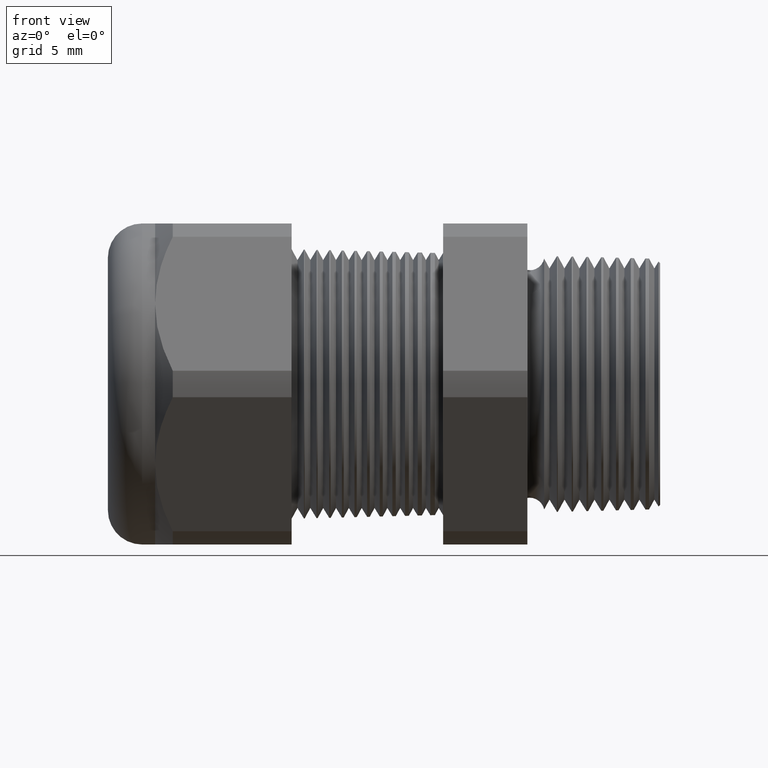
[diagram: clean part render]
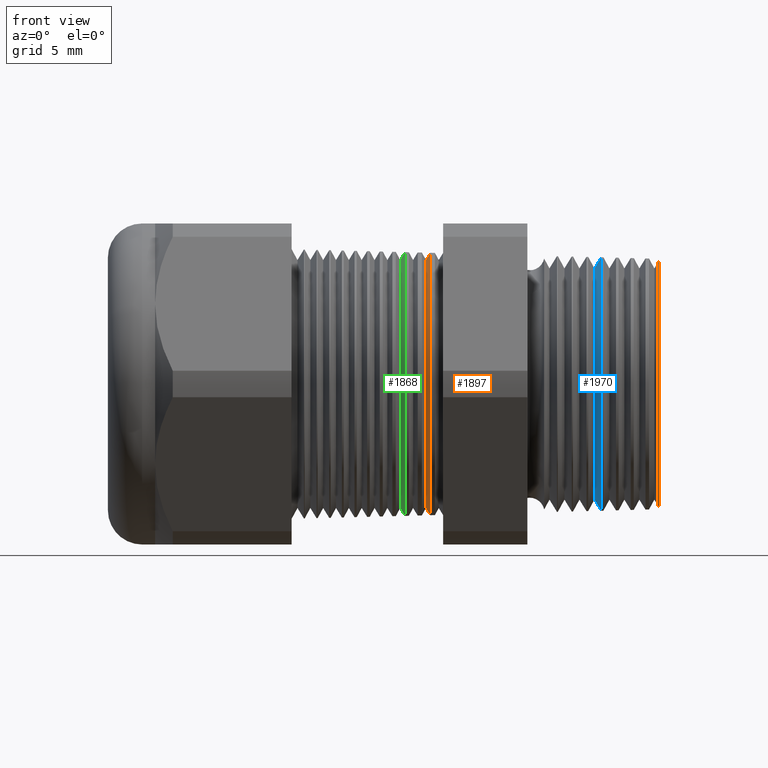
[diagram: same view with three faces highlighted in distinct colors, each labeled with its STEP entity id]
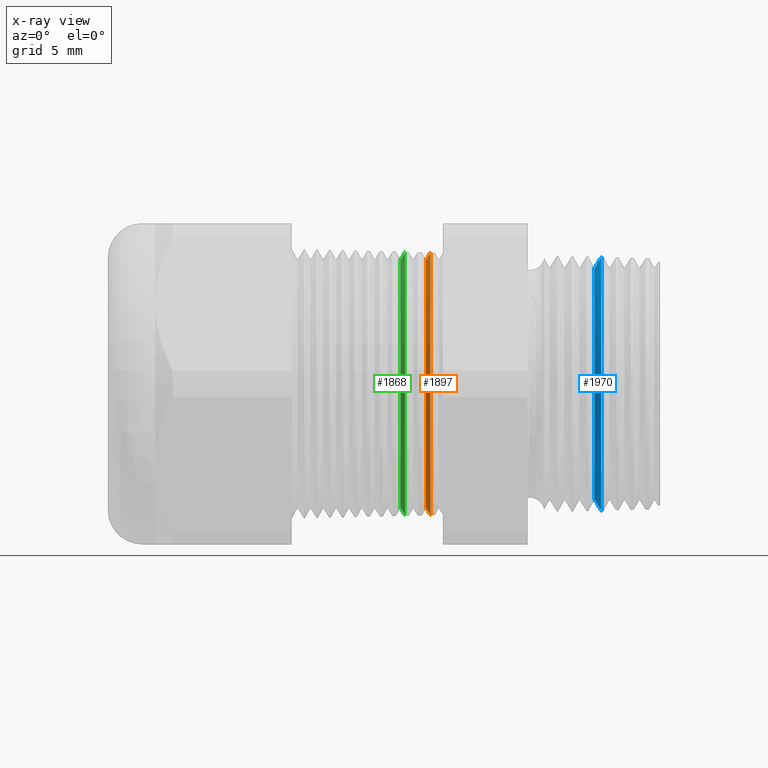
[diagram: x-ray of the same camera — body ghosted, the three highlighted faces saturated]
A machine part, front view with three faces highlighted in distinct colors.
The next image is the same camera in x-ray (body ghosted, the three faces saturated) — at least one of them is partly hidden behind the body in this view.
Their STEP definitions:

[orange] entity #1897 — the highlighted conical surface has half-angle 58.5 deg.
#651 = EDGE_CURVE ( 'NONE', #816, #813, #2442, .T. ) ;
#751 = VERTEX_POINT ( 'NONE', #2628 ) ;
#813 = VERTEX_POINT ( 'NONE', #2711 ) ;
#814 = EDGE_CURVE ( 'NONE', #751, #816, #2710, .T. ) ;
#816 = VERTEX_POINT ( 'NONE', #2701 ) ;
#819 = EDGE_CURVE ( 'NONE', #821, #813, #2757, .T. ) ;
#821 = VERTEX_POINT ( 'NONE', #2753 ) ;
#1844 = EDGE_CURVE ( 'NONE', #821, #751, #4614, .T. ) ;
#1897 = ADVANCED_FACE ( 'NONE', ( #4670 ), #4669, .T. ) ;
#1898 = EDGE_LOOP ( 'NONE', ( #1899, #1900, #1901, #1902 ) ) ;
#1899 = ORIENTED_EDGE ( 'NONE', *, *, #819, .F. ) ;
#1900 = ORIENTED_EDGE ( 'NONE', *, *, #1844, .T. ) ;
#1901 = ORIENTED_EDGE ( 'NONE', *, *, #814, .T. ) ;
#1902 = ORIENTED_EDGE ( 'NONE', *, *, #651, .T. ) ;
#2438 = DIRECTION ( 'NONE',  ( 0.0000000000000000000, 0.0000000000000000000, -1.000000000000000000 ) ) ;
#2439 = DIRECTION ( 'NONE',  ( -1.000000000000000000, 0.0000000000000000000, 0.0000000000000000000 ) ) ;
#2440 = CARTESIAN_POINT ( 'NONE',  ( -0.5367465169992680100, 0.0000000000000000000, 0.0000000000000000000 ) ) ;
#2441 = AXIS2_PLACEMENT_3D ( 'NONE', #2440, #2439, #2438 ) ;
#2442 = CIRCLE ( 'NONE', #2441, 0.3065126289277092500 ) ;
#2628 = CARTESIAN_POINT ( 'NONE',  ( -0.5470917547981792900, 3.653498935748999400E-017, -0.2896307351718082600 ) ) ;
#2701 = CARTESIAN_POINT ( 'NONE',  ( -0.5367465169992680100, 3.753697099145595900E-017, -0.3065126289277092500 ) ) ;
#2707 = DIRECTION ( 'NONE',  ( 0.5224985647159348100, 0.0000000000000000000, -0.8526401643541007300 ) ) ;
#2708 = VECTOR ( 'NONE', #2707, 39.37007874015748900 ) ;
#2709 = CARTESIAN_POINT ( 'NONE',  ( -0.5470917547981792900, 0.0000000000000000000, -0.2896307351718082600 ) ) ;
#2710 = LINE ( 'NONE', #2709, #2708 ) ;
#2711 = CARTESIAN_POINT ( 'NONE',  ( -0.5367465169992680100, 0.0000000000000000000, 0.3065126289277092500 ) ) ;
#2753 = CARTESIAN_POINT ( 'NONE',  ( -0.5470917547981792900, 0.0000000000000000000, 0.2896307351718082600 ) ) ;
#2754 = DIRECTION ( 'NONE',  ( 0.5224985647159348100, 1.044183048100722500E-016, 0.8526401643541007300 ) ) ;
#2755 = VECTOR ( 'NONE', #2754, 39.37007874015748900 ) ;
#2756 = CARTESIAN_POINT ( 'NONE',  ( -0.5470917547981792900, 3.546953527628497700E-017, 0.2896307351718082600 ) ) ;
#2757 = LINE ( 'NONE', #2756, #2755 ) ;
#4606 = DIRECTION ( 'NONE',  ( 0.0000000000000000000, 0.0000000000000000000, -1.000000000000000000 ) ) ;
#4607 = DIRECTION ( 'NONE',  ( 1.000000000000000000, 0.0000000000000000000, 0.0000000000000000000 ) ) ;
#4608 = CARTESIAN_POINT ( 'NONE',  ( -0.5470917547981792900, 0.0000000000000000000, 0.0000000000000000000 ) ) ;
#4609 = AXIS2_PLACEMENT_3D ( 'NONE', #4608, #4607, #4606 ) ;
#4614 = CIRCLE ( 'NONE', #4609, 0.2896307351718082600 ) ;
#4664 = DIRECTION ( 'NONE',  ( 0.0000000000000000000, 0.0000000000000000000, -1.000000000000000000 ) ) ;
#4665 = DIRECTION ( 'NONE',  ( 1.000000000000000000, 0.0000000000000000000, 0.0000000000000000000 ) ) ;
#4666 = CARTESIAN_POINT ( 'NONE',  ( -0.5470917547981792900, 0.0000000000000000000, 0.0000000000000000000 ) ) ;
#4667 = AXIS2_PLACEMENT_3D ( 'NONE', #4666, #4665, #4664 ) ;
#4669 = CONICAL_SURFACE ( 'NONE', #4667, 0.2896307351718082600, 1.021017612416699200 ) ;
#4670 = FACE_OUTER_BOUND ( 'NONE', #1898, .T. ) ;

[blue] entity #1970 — the highlighted conical surface has half-angle 58.5 deg.
#863 = EDGE_CURVE ( 'NONE', #2038, #2049, #2801, .T. ) ;
#1949 = ORIENTED_EDGE ( 'NONE', *, *, #2039, .T. ) ;
#1950 = ORIENTED_EDGE ( 'NONE', *, *, #863, .T. ) ;
#1967 = EDGE_CURVE ( 'NONE', #2042, #2040, #4772, .T. ) ;
#1970 = ADVANCED_FACE ( 'NONE', ( #4768 ), #4767, .T. ) ;
#1971 = EDGE_LOOP ( 'NONE', ( #1972, #1973, #1949, #1950 ) ) ;
#1972 = ORIENTED_EDGE ( 'NONE', *, *, #2036, .F. ) ;
#1973 = ORIENTED_EDGE ( 'NONE', *, *, #1967, .T. ) ;
#2036 = EDGE_CURVE ( 'NONE', #2042, #2049, #4816, .T. ) ;
#2038 = VERTEX_POINT ( 'NONE', #4871 ) ;
#2039 = EDGE_CURVE ( 'NONE', #2040, #2038, #4870, .T. ) ;
#2040 = VERTEX_POINT ( 'NONE', #4866 ) ;
#2042 = VERTEX_POINT ( 'NONE', #4865 ) ;
#2049 = VERTEX_POINT ( 'NONE', #4848 ) ;
#2797 = DIRECTION ( 'NONE',  ( 0.0000000000000000000, 0.0000000000000000000, -1.000000000000000000 ) ) ;
#2798 = DIRECTION ( 'NONE',  ( -1.000000000000000000, 0.0000000000000000000, 0.0000000000000000000 ) ) ;
#2799 = CARTESIAN_POINT ( 'NONE',  ( -0.1375819195166211300, 0.0000000000000000000, 0.0000000000000000000 ) ) ;
#2800 = AXIS2_PLACEMENT_3D ( 'NONE', #2799, #2798, #2797 ) ;
#2801 = CIRCLE ( 'NONE', #2800, 0.2960601360848354500 ) ;
#4762 = DIRECTION ( 'NONE',  ( 0.0000000000000000000, 0.0000000000000000000, -1.000000000000000000 ) ) ;
#4763 = DIRECTION ( 'NONE',  ( 1.000000000000000000, 0.0000000000000000000, 0.0000000000000000000 ) ) ;
#4764 = CARTESIAN_POINT ( 'NONE',  ( -0.1534707356790751800, 0.0000000000000000000, 0.0000000000000000000 ) ) ;
#4765 = AXIS2_PLACEMENT_3D ( 'NONE', #4764, #4763, #4762 ) ;
#4767 = CONICAL_SURFACE ( 'NONE', #4765, 0.2701319446236517000, 1.021017612416701600 ) ;
#4768 = FACE_OUTER_BOUND ( 'NONE', #1971, .T. ) ;
#4769 = DIRECTION ( 'NONE',  ( 0.0000000000000000000, 0.0000000000000000000, -1.000000000000000000 ) ) ;
#4770 = DIRECTION ( 'NONE',  ( 1.000000000000000000, 0.0000000000000000000, 0.0000000000000000000 ) ) ;
#4771 = AXIS2_PLACEMENT_3D ( 'NONE', #4777, #4770, #4769 ) ;
#4772 = CIRCLE ( 'NONE', #4771, 0.2701319446236517000 ) ;
#4777 = CARTESIAN_POINT ( 'NONE',  ( -0.1534707356790751800, 0.0000000000000000000, 0.0000000000000000000 ) ) ;
#4813 = DIRECTION ( 'NONE',  ( 0.5224985647159328100, 1.044183048100724200E-016, 0.8526401643541021700 ) ) ;
#4814 = VECTOR ( 'NONE', #4813, 39.37007874015748100 ) ;
#4815 = CARTESIAN_POINT ( 'NONE',  ( -0.1534707356790751800, 3.308162213308051400E-017, 0.2701319446236517000 ) ) ;
#4816 = LINE ( 'NONE', #4815, #4814 ) ;
#4848 = CARTESIAN_POINT ( 'NONE',  ( -0.1375819195166211300, 0.0000000000000000000, 0.2960601360848354500 ) ) ;
#4865 = CARTESIAN_POINT ( 'NONE',  ( -0.1534707356790751800, 0.0000000000000000000, 0.2701319446236517000 ) ) ;
#4866 = CARTESIAN_POINT ( 'NONE',  ( -0.1534707356790751800, 3.471800829982362700E-017, -0.2701319446236517000 ) ) ;
#4867 = DIRECTION ( 'NONE',  ( 0.5224985647159328100, 0.0000000000000000000, -0.8526401643541021700 ) ) ;
#4868 = VECTOR ( 'NONE', #4867, 39.37007874015748100 ) ;
#4869 = CARTESIAN_POINT ( 'NONE',  ( -0.1534707356790751800, 0.0000000000000000000, -0.2701319446236517000 ) ) ;
#4870 = LINE ( 'NONE', #4869, #4868 ) ;
#4871 = CARTESIAN_POINT ( 'NONE',  ( -0.1375819195166211300, 3.625690980114235700E-017, -0.2960601360848354500 ) ) ;

[green] entity #1868 — the highlighted conical surface has half-angle 58.5 deg.
#842 = EDGE_CURVE ( 'NONE', #845, #843, #2780, .T. ) ;
#843 = VERTEX_POINT ( 'NONE', #2776 ) ;
#845 = VERTEX_POINT ( 'NONE', #2770 ) ;
#847 = VERTEX_POINT ( 'NONE', #2769 ) ;
#1423 = EDGE_CURVE ( 'NONE', #847, #1425, #3769, .T. ) ;
#1425 = VERTEX_POINT ( 'NONE', #3820 ) ;
#1431 = EDGE_CURVE ( 'NONE', #1425, #843, #3817, .T. ) ;
#1847 = ORIENTED_EDGE ( 'NONE', *, *, #842, .F. ) ;
#1848 = ORIENTED_EDGE ( 'NONE', *, *, #1865, .T. ) ;
#1849 = ORIENTED_EDGE ( 'NONE', *, *, #1423, .T. ) ;
#1850 = ORIENTED_EDGE ( 'NONE', *, *, #1431, .T. ) ;
#1865 = EDGE_CURVE ( 'NONE', #845, #847, #4592, .T. ) ;
#1868 = ADVANCED_FACE ( 'NONE', ( #4583 ), #4582, .T. ) ;
#1869 = EDGE_LOOP ( 'NONE', ( #1847, #1848, #1849, #1850 ) ) ;
#2769 = CARTESIAN_POINT ( 'NONE',  ( -0.6070917547981793400, 3.663258243093466100E-017, -0.2896307351718082600 ) ) ;
#2770 = CARTESIAN_POINT ( 'NONE',  ( -0.6070917547981793400, 0.0000000000000000000, 0.2896307351718082600 ) ) ;
#2776 = CARTESIAN_POINT ( 'NONE',  ( -0.5957989176891517200, 0.0000000000000000000, 0.3080589704606463400 ) ) ;
#2777 = DIRECTION ( 'NONE',  ( 0.5224985647159348100, 1.044183048100722500E-016, 0.8526401643541007300 ) ) ;
#2778 = VECTOR ( 'NONE', #2777, 39.37007874015748900 ) ;
#2779 = CARTESIAN_POINT ( 'NONE',  ( -0.6070917547981793400, 3.546953527628497700E-017, 0.2896307351718082600 ) ) ;
#2780 = LINE ( 'NONE', #2779, #2778 ) ;
#3769 = LINE ( 'NONE', #3829, #3828 ) ;
#3813 = DIRECTION ( 'NONE',  ( 0.0000000000000000000, 0.0000000000000000000, -1.000000000000000000 ) ) ;
#3814 = DIRECTION ( 'NONE',  ( -1.000000000000000000, 0.0000000000000000000, 0.0000000000000000000 ) ) ;
#3815 = CARTESIAN_POINT ( 'NONE',  ( -0.5957989176891517200, 0.0000000000000000000, 0.0000000000000000000 ) ) ;
#3816 = AXIS2_PLACEMENT_3D ( 'NONE', #3815, #3814, #3813 ) ;
#3817 = CIRCLE ( 'NONE', #3816, 0.3080589704606464000 ) ;
#3820 = CARTESIAN_POINT ( 'NONE',  ( -0.5957989176891517200, 3.772634321232595700E-017, -0.3080589704606463400 ) ) ;
#3827 = DIRECTION ( 'NONE',  ( 0.5224985647159348100, 0.0000000000000000000, -0.8526401643541007300 ) ) ;
#3828 = VECTOR ( 'NONE', #3827, 39.37007874015748900 ) ;
#3829 = CARTESIAN_POINT ( 'NONE',  ( -0.6070917547981793400, 0.0000000000000000000, -0.2896307351718082600 ) ) ;
#4582 = CONICAL_SURFACE ( 'NONE', #4647, 0.2896307351718082600, 1.021017612416699200 ) ;
#4583 = FACE_OUTER_BOUND ( 'NONE', #1869, .T. ) ;
#4584 = DIRECTION ( 'NONE',  ( 0.0000000000000000000, 0.0000000000000000000, -1.000000000000000000 ) ) ;
#4585 = DIRECTION ( 'NONE',  ( 1.000000000000000000, 0.0000000000000000000, 0.0000000000000000000 ) ) ;
#4586 = CARTESIAN_POINT ( 'NONE',  ( -0.6070917547981793400, 0.0000000000000000000, 0.0000000000000000000 ) ) ;
#4587 = AXIS2_PLACEMENT_3D ( 'NONE', #4586, #4585, #4584 ) ;
#4592 = CIRCLE ( 'NONE', #4587, 0.2896307351718082600 ) ;
#4644 = DIRECTION ( 'NONE',  ( 0.0000000000000000000, 0.0000000000000000000, -1.000000000000000000 ) ) ;
#4645 = DIRECTION ( 'NONE',  ( 1.000000000000000000, 0.0000000000000000000, 0.0000000000000000000 ) ) ;
#4646 = CARTESIAN_POINT ( 'NONE',  ( -0.6070917547981793400, 0.0000000000000000000, 0.0000000000000000000 ) ) ;
#4647 = AXIS2_PLACEMENT_3D ( 'NONE', #4646, #4645, #4644 ) ;